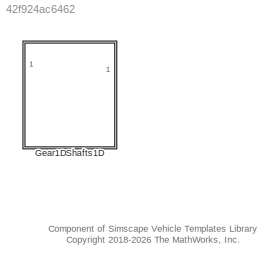
MODEL slx_42f924ac6462
KIND library
CONFIG SolverName = VariableStepAuto
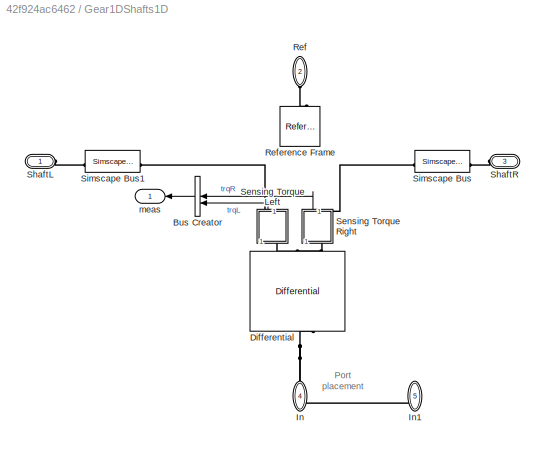
BLOCK [SubSystem] Gear1DShafts1D
  VariantControl = Gear1DShafts1D
BLOCK [PMIOPort] Gear1DShafts1D/ Ref
  NameLocation = left
  Port = 2
  Side = Left
BLOCK [BusCreator] Gear1DShafts1D/Bus Creator
  DisplayOption = bar
  InheritFromInputs = on
  Inputs = 2
BLOCK [Reference] Gear1DShafts1D/Differential  REF=sdl_lib/Gears/Differential
  NameLocation = right
  SourceBlock = sdl_lib/Gears/Differential
  SourceType = Differential
BLOCK [PMIOPort] Gear1DShafts1D/In
  NameLocation = right
  Port = 4
  Side = Right
BLOCK [PMIOPort] Gear1DShafts1D/In1
  NameLocation = right
  Port = 5
  Side = Right
BLOCK [Reference] Gear1DShafts1D/Reference Frame  REF=sm_lib/Frames and
Transforms/Reference
Frame
  NameLocation = right
  SourceBlock = sm_lib/Frames and\nTransforms/Reference\nFrame
  SourceType = Reference\nFrame
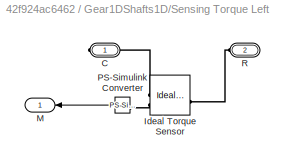
BLOCK [SubSystem] Gear1DShafts1D/Sensing Torque Left
  NameLocation = left
BLOCK [PMIOPort] Gear1DShafts1D/Sensing Torque Left/C
  Side = Right
BLOCK [Reference] Gear1DShafts1D/Sensing Torque Left/Ideal Torque Sensor  REF=fl_lib/Mechanical/Mechanical Sensors/Ideal Torque Sensor
  SourceBlock = fl_lib/Mechanical/Mechanical Sensors/Ideal Torque Sensor
  SourceType = Ideal Torque Sensor
BLOCK [Outport] Gear1DShafts1D/Sensing Torque Left/M
  VectorParamsAs1DForOutWhenUnconnected = off
BLOCK [Reference] Gear1DShafts1D/Sensing Torque Left/PS-Simulink Converter  REF=nesl_utility/PS-Simulink
Converter
  NameLocation = top
  SourceBlock = nesl_utility/PS-Simulink\nConverter
  SourceType = PS-Simulink\nConverter
BLOCK [PMIOPort] Gear1DShafts1D/Sensing Torque Left/R
  Port = 2
  Side = Left
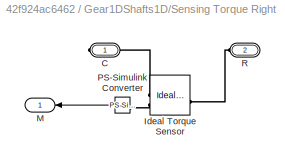
BLOCK [SubSystem] Gear1DShafts1D/Sensing Torque Right
  NameLocation = right
BLOCK [PMIOPort] Gear1DShafts1D/Sensing Torque Right/C
  Side = Right
BLOCK [Reference] Gear1DShafts1D/Sensing Torque Right/Ideal Torque Sensor  REF=fl_lib/Mechanical/Mechanical Sensors/Ideal Torque Sensor
  SourceBlock = fl_lib/Mechanical/Mechanical Sensors/Ideal Torque Sensor
  SourceType = Ideal Torque Sensor
BLOCK [Outport] Gear1DShafts1D/Sensing Torque Right/M
  VectorParamsAs1DForOutWhenUnconnected = off
BLOCK [Reference] Gear1DShafts1D/Sensing Torque Right/PS-Simulink Converter  REF=nesl_utility/PS-Simulink
Converter
  NameLocation = top
  SourceBlock = nesl_utility/PS-Simulink\nConverter
  SourceType = PS-Simulink\nConverter
BLOCK [PMIOPort] Gear1DShafts1D/Sensing Torque Right/R
  Port = 2
  Side = Left
BLOCK [PMIOPort] Gear1DShafts1D/ShaftL
  Side = Left
BLOCK [PMIOPort] Gear1DShafts1D/ShaftR
  Port = 3
  Side = Left
BLOCK [SimscapeBus] Gear1DShafts1D/Simscape Bus
  HierarchyStrings = Shaft1D
BLOCK [SimscapeBus] Gear1DShafts1D/Simscape Bus1
  HierarchyStrings = Shaft1D
BLOCK [Outport] Gear1DShafts1D/meas
  VectorParamsAs1DForOutWhenUnconnected = off
ANNOTATION (root): Component of Simscape Vehicle Templates Library <copyright redacted>
ANNOTATION Gear1DShafts1D: Port placement
LINE Gear1DShafts1D/Bus Creator:1 -> Gear1DShafts1D/meas:1
LINE Gear1DShafts1D/Sensing Torque Left/PS-Simulink Converter:1 -> Gear1DShafts1D/Sensing Torque Left/M:1
LINE Gear1DShafts1D/Sensing Torque Left:1 -> Gear1DShafts1D/Bus Creator:2
LINE Gear1DShafts1D/Sensing Torque Right/PS-Simulink Converter:1 -> Gear1DShafts1D/Sensing Torque Right/M:1
LINE Gear1DShafts1D/Sensing Torque Right:1 -> Gear1DShafts1D/Bus Creator:1
PLINE Gear1DShafts1D/ Ref:RConn1 -- Gear1DShafts1D/Reference Frame:RConn1
PNET net1: Gear1DShafts1D/Differential:LConn1 -- Gear1DShafts1D/In1:RConn1 -- Gear1DShafts1D/In:RConn1
PLINE Gear1DShafts1D/Differential:RConn1 -- Gear1DShafts1D/Sensing Torque Right:LConn1
PLINE Gear1DShafts1D/Differential:RConn2 -- Gear1DShafts1D/Sensing Torque Left:LConn1
PLINE Gear1DShafts1D/Sensing Torque Left/C:RConn1 -- Gear1DShafts1D/Sensing Torque Left/Ideal Torque Sensor:RConn1
PLINE Gear1DShafts1D/Sensing Torque Left/Ideal Torque Sensor:LConn1 -- Gear1DShafts1D/Sensing Torque Left/R:RConn1
PLINE Gear1DShafts1D/Sensing Torque Left/Ideal Torque Sensor:RConn2 -- Gear1DShafts1D/Sensing Torque Left/PS-Simulink Converter:LConn1
PLINE Gear1DShafts1D/Sensing Torque Left:RConn1 -- Gear1DShafts1D/Simscape Bus1:LConn1
PLINE Gear1DShafts1D/Sensing Torque Right/C:RConn1 -- Gear1DShafts1D/Sensing Torque Right/Ideal Torque Sensor:RConn1
PLINE Gear1DShafts1D/Sensing Torque Right/Ideal Torque Sensor:LConn1 -- Gear1DShafts1D/Sensing Torque Right/R:RConn1
PLINE Gear1DShafts1D/Sensing Torque Right/Ideal Torque Sensor:RConn2 -- Gear1DShafts1D/Sensing Torque Right/PS-Simulink Converter:LConn1
PLINE Gear1DShafts1D/Sensing Torque Right:RConn1 -- Gear1DShafts1D/Simscape Bus:LConn1
PLINE Gear1DShafts1D/ShaftL:RConn1 -- Gear1DShafts1D/Simscape Bus1:RConn1
PLINE Gear1DShafts1D/ShaftR:RConn1 -- Gear1DShafts1D/Simscape Bus:RConn1
note: PNET lines group multi-terminal physical nets as a canonical sorted terminal list (undirected conserving connections); 2-terminal nets keep the pairwise PLINE form
